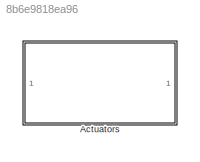
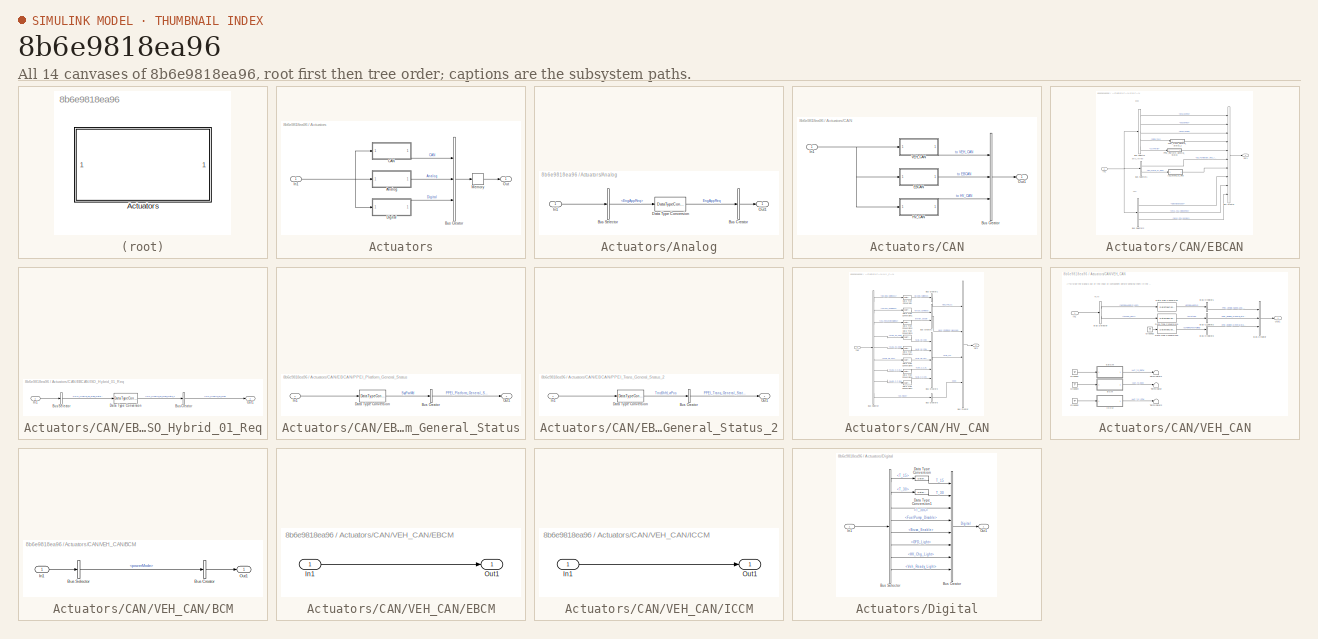
[diagram: thumbnail index - all 14 canvases of the model, root first then tree order]
MODEL slx_8b6e9818ea96
KIND library
CONFIG AbsTol = auto
CONFIG EnableMultiTasking = off
CONFIG FixedStep = auto
CONFIG MaxStep = auto
CONFIG MinStep = auto
CONFIG RelTol = 1e-3
CONFIG SampleTimeConstraint = Unconstrained
CONFIG Solver = VariableStepAuto
CONFIG SolverName = VariableStepAuto
CONFIG StartTime = 0.0
CONFIG StopTime = 10.0
BLOCK [SubSystem] Actuators
  Ports = [1, 1]
  RequestExecContextInheritance = off
  Variant = off
BLOCK [SubSystem] Actuators/Analog
  Ports = [1, 1]
  RequestExecContextInheritance = off
  Variant = off
BLOCK [BusCreator] Actuators/Analog/Bus Creator
  DisplayOption = bar
  InheritFromInputs = on
  Inputs = 1
  Ports = [1, 1]
BLOCK [BusSelector] Actuators/Analog/Bus Selector
  OutputAsBus = off
  OutputSignals = Controls.EngAppReq
  Ports = [1, 1]
BLOCK [DataTypeConversion] Actuators/Analog/Data Type Conversion
  RndMeth = Floor
  SaturateOnIntegerOverflow = off
BLOCK [Inport] Actuators/Analog/In1
  IconDisplay = Port number
BLOCK [Outport] Actuators/Analog/Out1
  IconDisplay = Port number
BLOCK [BusCreator] Actuators/Bus Creator
  DisplayOption = bar
  InheritFromInputs = on
  Inputs = 3
  Ports = [3, 1]
BLOCK [SubSystem] Actuators/CAN
  Ports = [1, 1]
  RequestExecContextInheritance = off
  Variant = off
BLOCK [BusCreator] Actuators/CAN/Bus Creator
  DisplayOption = bar
  InheritFromInputs = on
  Inputs = 3
  Ports = [3, 1]
BLOCK [SubSystem] Actuators/CAN/EBCAN
  Ports = [1, 1]
  RequestExecContextInheritance = off
  Variant = off
BLOCK [BusCreator] Actuators/CAN/EBCAN/Bus Creator
  DisplayOption = bar
  InheritFromInputs = on
  Inputs = 10
  Ports = [10, 1]
BLOCK [BusSelector] Actuators/CAN/EBCAN/Bus Selector
  OutputAsBus = off
  OutputSignals = Controls.EngAppReq,Controls.EngOnReq,Controls.EngTrqCmd,Controls.ShftLvrPos,Controls.SysPwrMd
  Ports = [1, 5]
BLOCK [BusSelector] Actuators/CAN/EBCAN/Bus Selector1
  OutputAsBus = off
  OutputSignals = BMS_CAN.ISO_Funktionaler_Req_All,BMS_CAN.ISO_Hybrid_01_Req
  Ports = [1, 2]
BLOCK [BusSelector] Actuators/CAN/EBCAN/Bus Selector2
  OutputAsBus = off
  OutputSignals = Controls.ClutchDisEngage,CCU_CAN.MY15_CCU_stModeReq,CCU_CAN.MY15_CCU_posDes
  Ports = [1, 3]
BLOCK [SubSystem] Actuators/CAN/EBCAN/ISO_Hybrid_01_Req
  Ports = [1, 1]
  RequestExecContextInheritance = off
  Variant = off
BLOCK [BusCreator] Actuators/CAN/EBCAN/ISO_Hybrid_01_Req/Bus Creator
  DisplayOption = bar
  InheritFromInputs = on
  Inputs = 1
  Ports = [1, 1]
BLOCK [BusSelector] Actuators/CAN/EBCAN/ISO_Hybrid_01_Req/Bus Selector
  OutputAsBus = off
  OutputSignals = ISO_Hybrid_01_Req_Data_byte_3
  Ports = [1, 1]
BLOCK [DataTypeConversion] Actuators/CAN/EBCAN/ISO_Hybrid_01_Req/Data Type Conversion
  RndMeth = Floor
  SaturateOnIntegerOverflow = off
BLOCK [Inport] Actuators/CAN/EBCAN/ISO_Hybrid_01_Req/In1
  IconDisplay = Port number
BLOCK [Outport] Actuators/CAN/EBCAN/ISO_Hybrid_01_Req/Out1
  IconDisplay = Port number
BLOCK [Inport] Actuators/CAN/EBCAN/In1
  IconDisplay = Port number
BLOCK [Outport] Actuators/CAN/EBCAN/Out1
  IconDisplay = Port number
BLOCK [SubSystem] Actuators/CAN/EBCAN/PPEI_Platform_General_Status
  Ports = [1, 1]
  RequestExecContextInheritance = off
  Variant = off
BLOCK [BusCreator] Actuators/CAN/EBCAN/PPEI_Platform_General_Status/Bus Creator
  DisplayOption = bar
  InheritFromInputs = on
  Inputs = 1
  Ports = [1, 1]
BLOCK [DataTypeConversion] Actuators/CAN/EBCAN/PPEI_Platform_General_Status/Data Type Conversion
  RndMeth = Floor
  SaturateOnIntegerOverflow = off
BLOCK [Inport] Actuators/CAN/EBCAN/PPEI_Platform_General_Status/In1
  IconDisplay = Port number
BLOCK [Outport] Actuators/CAN/EBCAN/PPEI_Platform_General_Status/Out1
  IconDisplay = Port number
BLOCK [SubSystem] Actuators/CAN/EBCAN/PPEI_Trans_General_Status_2
  Ports = [1, 1]
  RequestExecContextInheritance = off
  Variant = off
BLOCK [BusCreator] Actuators/CAN/EBCAN/PPEI_Trans_General_Status_2/Bus Creator
  DisplayOption = bar
  InheritFromInputs = on
  Inputs = 1
  Ports = [1, 1]
BLOCK [DataTypeConversion] Actuators/CAN/EBCAN/PPEI_Trans_General_Status_2/Data Type Conversion
  RndMeth = Floor
  SaturateOnIntegerOverflow = off
BLOCK [Inport] Actuators/CAN/EBCAN/PPEI_Trans_General_Status_2/In1
  IconDisplay = Port number
BLOCK [Outport] Actuators/CAN/EBCAN/PPEI_Trans_General_Status_2/Out1
  IconDisplay = Port number
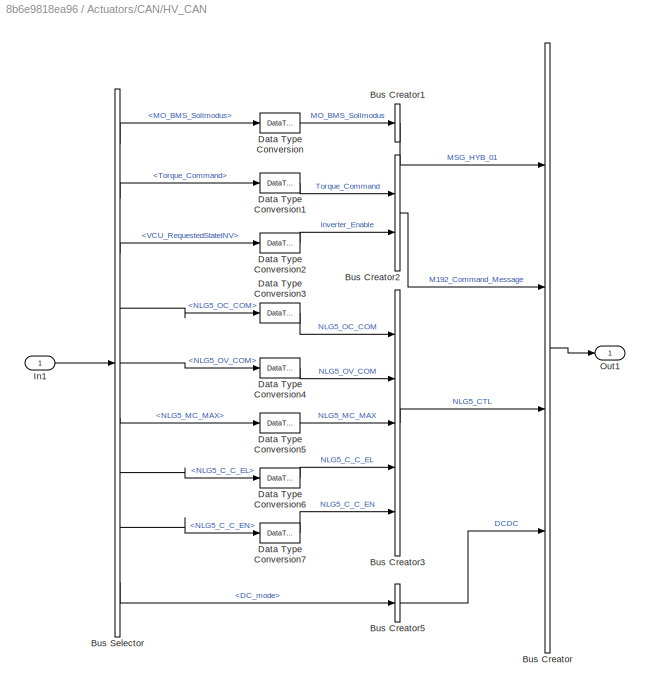
BLOCK [SubSystem] Actuators/CAN/HV_CAN
  Ports = [1, 1]
  RequestExecContextInheritance = off
  Variant = off
BLOCK [BusCreator] Actuators/CAN/HV_CAN/Bus Creator
  DisplayOption = bar
  InheritFromInputs = on
  Inputs = 4
  Ports = [4, 1]
BLOCK [BusCreator] Actuators/CAN/HV_CAN/Bus Creator1
  DisplayOption = bar
  InheritFromInputs = on
  Inputs = 1
  Ports = [1, 1]
BLOCK [BusCreator] Actuators/CAN/HV_CAN/Bus Creator2
  DisplayOption = bar
  InheritFromInputs = on
  Inputs = 2
  Ports = [2, 1]
BLOCK [BusCreator] Actuators/CAN/HV_CAN/Bus Creator3
  DisplayOption = bar
  InheritFromInputs = on
  Inputs = 5
  Ports = [5, 1]
BLOCK [BusCreator] Actuators/CAN/HV_CAN/Bus Creator5
  DisplayOption = bar
  InheritFromInputs = on
  Inputs = 1
  Ports = [1, 1]
BLOCK [BusSelector] Actuators/CAN/HV_CAN/Bus Selector
  OutputAsBus = off
  OutputSignals = BMS_CAN.MSG_HYB_01.MO_BMS_Sollmodus,Controls.Torque_Command,MCU_CAN.MCU_CAN.VCU_RequestedStateINV,OBC_CAN.NLG5_OC_COM,OBC_CAN.NLG5_OV_COM,OBC_CAN.NLG5_MC_MAX,OBC_CAN.NLG5_C_C_EL,OBC_CAN.NLG5_C_C_EN,MCU_CAN.DCDC_Out.DC_mode
  Ports = [1, 9]
BLOCK [DataTypeConversion] Actuators/CAN/HV_CAN/Data Type Conversion
  RndMeth = Floor
  SaturateOnIntegerOverflow = off
BLOCK [DataTypeConversion] Actuators/CAN/HV_CAN/Data Type Conversion1
  RndMeth = Floor
  SaturateOnIntegerOverflow = off
BLOCK [DataTypeConversion] Actuators/CAN/HV_CAN/Data Type Conversion2
  RndMeth = Floor
  SaturateOnIntegerOverflow = off
BLOCK [DataTypeConversion] Actuators/CAN/HV_CAN/Data Type Conversion3
  RndMeth = Floor
  SaturateOnIntegerOverflow = off
BLOCK [DataTypeConversion] Actuators/CAN/HV_CAN/Data Type Conversion4
  RndMeth = Floor
  SaturateOnIntegerOverflow = off
BLOCK [DataTypeConversion] Actuators/CAN/HV_CAN/Data Type Conversion5
  RndMeth = Floor
  SaturateOnIntegerOverflow = off
BLOCK [DataTypeConversion] Actuators/CAN/HV_CAN/Data Type Conversion6
  RndMeth = Floor
  SaturateOnIntegerOverflow = off
BLOCK [DataTypeConversion] Actuators/CAN/HV_CAN/Data Type Conversion7
  RndMeth = Floor
  SaturateOnIntegerOverflow = off
BLOCK [Inport] Actuators/CAN/HV_CAN/In1
  IconDisplay = Port number
BLOCK [Outport] Actuators/CAN/HV_CAN/Out1
  IconDisplay = Port number
BLOCK [Inport] Actuators/CAN/In1
  IconDisplay = Port number
BLOCK [Outport] Actuators/CAN/Out1
  IconDisplay = Port number
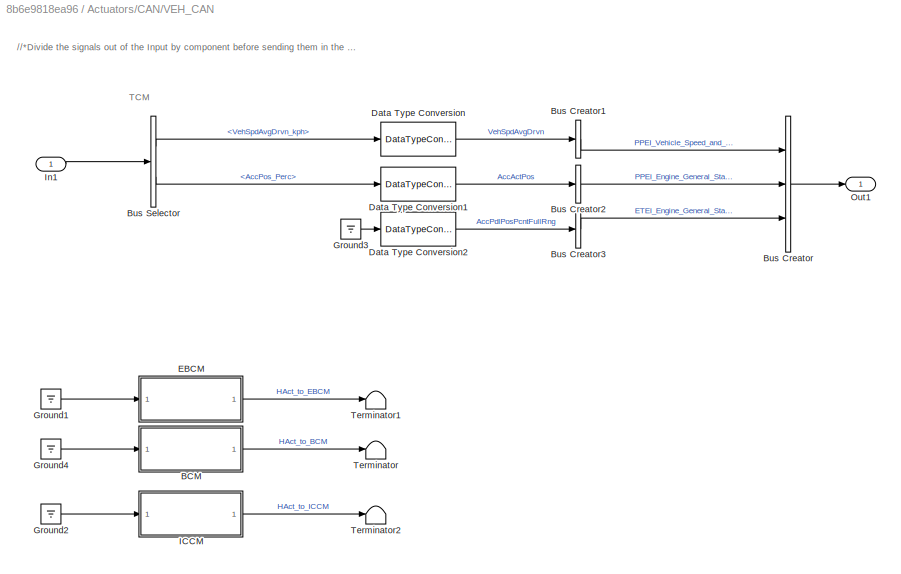
BLOCK [SubSystem] Actuators/CAN/VEH_CAN
  Ports = [1, 1]
  RequestExecContextInheritance = off
  Variant = off
BLOCK [SubSystem] Actuators/CAN/VEH_CAN/BCM
  Commented = on
  Ports = [1, 1]
  RequestExecContextInheritance = off
  Variant = off
BLOCK [BusCreator] Actuators/CAN/VEH_CAN/BCM/Bus Creator
  DisplayOption = bar
  InheritFromInputs = on
  Inputs = 1
  Ports = [1, 1]
BLOCK [BusSelector] Actuators/CAN/VEH_CAN/BCM/Bus Selector
  OutputAsBus = off
  OutputSignals = Controls.powerMode
  Ports = [1, 1]
BLOCK [Inport] Actuators/CAN/VEH_CAN/BCM/In1
  IconDisplay = Port number
BLOCK [Outport] Actuators/CAN/VEH_CAN/BCM/Out1
  IconDisplay = Port number
BLOCK [BusCreator] Actuators/CAN/VEH_CAN/Bus Creator
  DisplayOption = bar
  InheritFromInputs = on
  Inputs = 3
  Ports = [3, 1]
BLOCK [BusCreator] Actuators/CAN/VEH_CAN/Bus Creator1
  DisplayOption = bar
  InheritFromInputs = on
  Inputs = 1
  Ports = [1, 1]
BLOCK [BusCreator] Actuators/CAN/VEH_CAN/Bus Creator2
  DisplayOption = bar
  InheritFromInputs = on
  Inputs = 1
  Ports = [1, 1]
BLOCK [BusCreator] Actuators/CAN/VEH_CAN/Bus Creator3
  DisplayOption = bar
  InheritFromInputs = on
  Inputs = 1
  Ports = [1, 1]
BLOCK [BusSelector] Actuators/CAN/VEH_CAN/Bus Selector
  OutputAsBus = off
  OutputSignals = Controls.VehSpdAvgDrvn_kph,Controls.AccPos_Perc
  Ports = [1, 2]
BLOCK [DataTypeConversion] Actuators/CAN/VEH_CAN/Data Type Conversion
  RndMeth = Floor
  SaturateOnIntegerOverflow = off
BLOCK [DataTypeConversion] Actuators/CAN/VEH_CAN/Data Type Conversion1
  RndMeth = Floor
  SaturateOnIntegerOverflow = off
BLOCK [DataTypeConversion] Actuators/CAN/VEH_CAN/Data Type Conversion2
  RndMeth = Floor
  SaturateOnIntegerOverflow = off
BLOCK [SubSystem] Actuators/CAN/VEH_CAN/EBCM
  Commented = on
  Ports = [1, 1]
  RequestExecContextInheritance = off
  Variant = off
BLOCK [Inport] Actuators/CAN/VEH_CAN/EBCM/In1
  IconDisplay = Port number
BLOCK [Outport] Actuators/CAN/VEH_CAN/EBCM/Out1
  IconDisplay = Port number
BLOCK [Ground] Actuators/CAN/VEH_CAN/Ground1
  Commented = on
BLOCK [Ground] Actuators/CAN/VEH_CAN/Ground2
  Commented = on
BLOCK [Ground] Actuators/CAN/VEH_CAN/Ground3
BLOCK [Ground] Actuators/CAN/VEH_CAN/Ground4
  Commented = on
BLOCK [SubSystem] Actuators/CAN/VEH_CAN/ICCM
  Commented = on
  Ports = [1, 1]
  RequestExecContextInheritance = off
  Variant = off
BLOCK [Inport] Actuators/CAN/VEH_CAN/ICCM/In1
  IconDisplay = Port number
BLOCK [Outport] Actuators/CAN/VEH_CAN/ICCM/Out1
  IconDisplay = Port number
BLOCK [Inport] Actuators/CAN/VEH_CAN/In1
  IconDisplay = Port number
BLOCK [Outport] Actuators/CAN/VEH_CAN/Out1
  IconDisplay = Port number
BLOCK [Terminator] Actuators/CAN/VEH_CAN/Terminator
  Commented = on
BLOCK [Terminator] Actuators/CAN/VEH_CAN/Terminator1
  Commented = on
BLOCK [Terminator] Actuators/CAN/VEH_CAN/Terminator2
  Commented = on
BLOCK [SubSystem] Actuators/Digital
  Ports = [1, 1]
  RequestExecContextInheritance = off
  Variant = off
BLOCK [BusCreator] Actuators/Digital/Bus Creator
  DisplayOption = bar
  InheritFromInputs = on
  Inputs = 8
  Ports = [8, 1]
BLOCK [BusSelector] Actuators/Digital/Bus Selector
  OutputAsBus = off
  OutputSignals = BMS_Digital.T_15,BMS_Digital.T_30,BMS_Digital.T_30C,Fuel_Pump_Control.Pump_Commands.FuelPump_Disable,OBC_Digital.Brusa_Enable,Axiomatic_CAN.GFD_Light,Axiomatic_CAN.HV_Chg_Light,Axiomatic_CAN.Veh_Ready_Light
  Ports = [1, 8]
BLOCK [DataTypeConversion] Actuators/Digital/Data Type Conversion
  RndMeth = Floor
  SaturateOnIntegerOverflow = off
BLOCK [DataTypeConversion] Actuators/Digital/Data Type Conversion1
  RndMeth = Floor
  SaturateOnIntegerOverflow = off
BLOCK [Inport] Actuators/Digital/In1
  IconDisplay = Port number
BLOCK [Outport] Actuators/Digital/Out1
  IconDisplay = Port number
BLOCK [Inport] Actuators/In1
  IconDisplay = Port number
BLOCK [Memory] Actuators/Memory
  InheritSampleTime = on
BLOCK [Outport] Actuators/Out
  IconDisplay = Port number
ANNOTATION Actuators/CAN/EBCAN: BMS_Antrieb
ANNOTATION Actuators/CAN/EBCAN: CCU
ANNOTATION Actuators/CAN/EBCAN: ECM
ANNOTATION Actuators/CAN/VEH_CAN: //*Divide the signals out of the Input by component before sending them in the TCM, EBCM etc blocks*//
ANNOTATION Actuators/CAN/VEH_CAN: TCM
LINE Actuators/Analog/Bus Creator:1 -> Actuators/Analog/Out1:1
LINE Actuators/Analog/Bus Selector:1 -> Actuators/Analog/Data Type Conversion:1
LINE Actuators/Analog/Data Type Conversion:1 -> Actuators/Analog/Bus Creator:1
LINE Actuators/Analog/In1:1 -> Actuators/Analog/Bus Selector:1
LINE Actuators/Analog:1 -> Actuators/Bus Creator:2
LINE Actuators/Bus Creator:1 -> Actuators/Memory:1
LINE Actuators/CAN/Bus Creator:1 -> Actuators/CAN/Out1:1
LINE Actuators/CAN/EBCAN/Bus Creator:1 -> Actuators/CAN/EBCAN/Out1:1
LINE Actuators/CAN/EBCAN/Bus Selector1:1 -> Actuators/CAN/EBCAN/Bus Creator:6
LINE Actuators/CAN/EBCAN/Bus Selector1:2 -> Actuators/CAN/EBCAN/ISO_Hybrid_01_Req:1
LINE Actuators/CAN/EBCAN/Bus Selector2:1 -> Actuators/CAN/EBCAN/Bus Creator:8
LINE Actuators/CAN/EBCAN/Bus Selector2:2 -> Actuators/CAN/EBCAN/Bus Creator:9
LINE Actuators/CAN/EBCAN/Bus Selector2:3 -> Actuators/CAN/EBCAN/Bus Creator:10
LINE Actuators/CAN/EBCAN/Bus Selector:1 -> Actuators/CAN/EBCAN/Bus Creator:1
LINE Actuators/CAN/EBCAN/Bus Selector:2 -> Actuators/CAN/EBCAN/Bus Creator:2
LINE Actuators/CAN/EBCAN/Bus Selector:3 -> Actuators/CAN/EBCAN/Bus Creator:3
LINE Actuators/CAN/EBCAN/Bus Selector:4 -> Actuators/CAN/EBCAN/PPEI_Trans_General_Status_2:1
LINE Actuators/CAN/EBCAN/Bus Selector:5 -> Actuators/CAN/EBCAN/PPEI_Platform_General_Status:1
LINE Actuators/CAN/EBCAN/ISO_Hybrid_01_Req/Bus Creator:1 -> Actuators/CAN/EBCAN/ISO_Hybrid_01_Req/Out1:1
LINE Actuators/CAN/EBCAN/ISO_Hybrid_01_Req/Bus Selector:1 -> Actuators/CAN/EBCAN/ISO_Hybrid_01_Req/Data Type Conversion:1
LINE Actuators/CAN/EBCAN/ISO_Hybrid_01_Req/Data Type Conversion:1 -> Actuators/CAN/EBCAN/ISO_Hybrid_01_Req/Bus Creator:1
LINE Actuators/CAN/EBCAN/ISO_Hybrid_01_Req/In1:1 -> Actuators/CAN/EBCAN/ISO_Hybrid_01_Req/Bus Selector:1
LINE Actuators/CAN/EBCAN/ISO_Hybrid_01_Req:1 -> Actuators/CAN/EBCAN/Bus Creator:7
NET Actuators/CAN/EBCAN/In1:1 -> Actuators/CAN/EBCAN/Bus Selector1:1, Actuators/CAN/EBCAN/Bus Selector2:1, Actuators/CAN/EBCAN/Bus Selector:1
LINE Actuators/CAN/EBCAN/PPEI_Platform_General_Status/Bus Creator:1 -> Actuators/CAN/EBCAN/PPEI_Platform_General_Status/Out1:1
LINE Actuators/CAN/EBCAN/PPEI_Platform_General_Status/Data Type Conversion:1 -> Actuators/CAN/EBCAN/PPEI_Platform_General_Status/Bus Creator:1
LINE Actuators/CAN/EBCAN/PPEI_Platform_General_Status/In1:1 -> Actuators/CAN/EBCAN/PPEI_Platform_General_Status/Data Type Conversion:1
LINE Actuators/CAN/EBCAN/PPEI_Platform_General_Status:1 -> Actuators/CAN/EBCAN/Bus Creator:5
LINE Actuators/CAN/EBCAN/PPEI_Trans_General_Status_2/Bus Creator:1 -> Actuators/CAN/EBCAN/PPEI_Trans_General_Status_2/Out1:1
LINE Actuators/CAN/EBCAN/PPEI_Trans_General_Status_2/Data Type Conversion:1 -> Actuators/CAN/EBCAN/PPEI_Trans_General_Status_2/Bus Creator:1
LINE Actuators/CAN/EBCAN/PPEI_Trans_General_Status_2/In1:1 -> Actuators/CAN/EBCAN/PPEI_Trans_General_Status_2/Data Type Conversion:1
LINE Actuators/CAN/EBCAN/PPEI_Trans_General_Status_2:1 -> Actuators/CAN/EBCAN/Bus Creator:4
LINE Actuators/CAN/EBCAN:1 -> Actuators/CAN/Bus Creator:2
LINE Actuators/CAN/HV_CAN/Bus Creator1:1 -> Actuators/CAN/HV_CAN/Bus Creator:1
LINE Actuators/CAN/HV_CAN/Bus Creator2:1 -> Actuators/CAN/HV_CAN/Bus Creator:2
LINE Actuators/CAN/HV_CAN/Bus Creator3:1 -> Actuators/CAN/HV_CAN/Bus Creator:3
LINE Actuators/CAN/HV_CAN/Bus Creator5:1 -> Actuators/CAN/HV_CAN/Bus Creator:4
LINE Actuators/CAN/HV_CAN/Bus Creator:1 -> Actuators/CAN/HV_CAN/Out1:1
LINE Actuators/CAN/HV_CAN/Bus Selector:1 -> Actuators/CAN/HV_CAN/Data Type Conversion:1
LINE Actuators/CAN/HV_CAN/Bus Selector:2 -> Actuators/CAN/HV_CAN/Data Type Conversion1:1
LINE Actuators/CAN/HV_CAN/Bus Selector:3 -> Actuators/CAN/HV_CAN/Data Type Conversion2:1
LINE Actuators/CAN/HV_CAN/Bus Selector:4 -> Actuators/CAN/HV_CAN/Data Type Conversion3:1
LINE Actuators/CAN/HV_CAN/Bus Selector:5 -> Actuators/CAN/HV_CAN/Data Type Conversion4:1
LINE Actuators/CAN/HV_CAN/Bus Selector:6 -> Actuators/CAN/HV_CAN/Data Type Conversion5:1
LINE Actuators/CAN/HV_CAN/Bus Selector:7 -> Actuators/CAN/HV_CAN/Data Type Conversion6:1
LINE Actuators/CAN/HV_CAN/Bus Selector:8 -> Actuators/CAN/HV_CAN/Data Type Conversion7:1
LINE Actuators/CAN/HV_CAN/Bus Selector:9 -> Actuators/CAN/HV_CAN/Bus Creator5:1
LINE Actuators/CAN/HV_CAN/Data Type Conversion1:1 -> Actuators/CAN/HV_CAN/Bus Creator2:1
LINE Actuators/CAN/HV_CAN/Data Type Conversion2:1 -> Actuators/CAN/HV_CAN/Bus Creator2:2
LINE Actuators/CAN/HV_CAN/Data Type Conversion3:1 -> Actuators/CAN/HV_CAN/Bus Creator3:1
LINE Actuators/CAN/HV_CAN/Data Type Conversion4:1 -> Actuators/CAN/HV_CAN/Bus Creator3:2
LINE Actuators/CAN/HV_CAN/Data Type Conversion5:1 -> Actuators/CAN/HV_CAN/Bus Creator3:3
LINE Actuators/CAN/HV_CAN/Data Type Conversion6:1 -> Actuators/CAN/HV_CAN/Bus Creator3:4
LINE Actuators/CAN/HV_CAN/Data Type Conversion7:1 -> Actuators/CAN/HV_CAN/Bus Creator3:5
LINE Actuators/CAN/HV_CAN/Data Type Conversion:1 -> Actuators/CAN/HV_CAN/Bus Creator1:1
LINE Actuators/CAN/HV_CAN/In1:1 -> Actuators/CAN/HV_CAN/Bus Selector:1
LINE Actuators/CAN/HV_CAN:1 -> Actuators/CAN/Bus Creator:3
NET Actuators/CAN/In1:1 -> Actuators/CAN/EBCAN:1, Actuators/CAN/HV_CAN:1, Actuators/CAN/VEH_CAN:1
LINE Actuators/CAN/VEH_CAN/BCM/Bus Creator:1 -> Actuators/CAN/VEH_CAN/BCM/Out1:1
LINE Actuators/CAN/VEH_CAN/BCM/Bus Selector:1 -> Actuators/CAN/VEH_CAN/BCM/Bus Creator:1
LINE Actuators/CAN/VEH_CAN/BCM/In1:1 -> Actuators/CAN/VEH_CAN/BCM/Bus Selector:1
LINE Actuators/CAN/VEH_CAN/BCM:1 -> Actuators/CAN/VEH_CAN/Terminator:1
LINE Actuators/CAN/VEH_CAN/Bus Creator1:1 -> Actuators/CAN/VEH_CAN/Bus Creator:1
LINE Actuators/CAN/VEH_CAN/Bus Creator2:1 -> Actuators/CAN/VEH_CAN/Bus Creator:2
LINE Actuators/CAN/VEH_CAN/Bus Creator3:1 -> Actuators/CAN/VEH_CAN/Bus Creator:3
LINE Actuators/CAN/VEH_CAN/Bus Creator:1 -> Actuators/CAN/VEH_CAN/Out1:1
LINE Actuators/CAN/VEH_CAN/Bus Selector:1 -> Actuators/CAN/VEH_CAN/Data Type Conversion:1
LINE Actuators/CAN/VEH_CAN/Bus Selector:2 -> Actuators/CAN/VEH_CAN/Data Type Conversion1:1
LINE Actuators/CAN/VEH_CAN/Data Type Conversion1:1 -> Actuators/CAN/VEH_CAN/Bus Creator2:1
LINE Actuators/CAN/VEH_CAN/Data Type Conversion2:1 -> Actuators/CAN/VEH_CAN/Bus Creator3:1
LINE Actuators/CAN/VEH_CAN/Data Type Conversion:1 -> Actuators/CAN/VEH_CAN/Bus Creator1:1
LINE Actuators/CAN/VEH_CAN/EBCM/In1:1 -> Actuators/CAN/VEH_CAN/EBCM/Out1:1
LINE Actuators/CAN/VEH_CAN/EBCM:1 -> Actuators/CAN/VEH_CAN/Terminator1:1
LINE Actuators/CAN/VEH_CAN/Ground1:1 -> Actuators/CAN/VEH_CAN/EBCM:1
LINE Actuators/CAN/VEH_CAN/Ground2:1 -> Actuators/CAN/VEH_CAN/ICCM:1
LINE Actuators/CAN/VEH_CAN/Ground3:1 -> Actuators/CAN/VEH_CAN/Data Type Conversion2:1
LINE Actuators/CAN/VEH_CAN/Ground4:1 -> Actuators/CAN/VEH_CAN/BCM:1
LINE Actuators/CAN/VEH_CAN/ICCM/In1:1 -> Actuators/CAN/VEH_CAN/ICCM/Out1:1
LINE Actuators/CAN/VEH_CAN/ICCM:1 -> Actuators/CAN/VEH_CAN/Terminator2:1
LINE Actuators/CAN/VEH_CAN/In1:1 -> Actuators/CAN/VEH_CAN/Bus Selector:1
LINE Actuators/CAN/VEH_CAN:1 -> Actuators/CAN/Bus Creator:1
LINE Actuators/CAN:1 -> Actuators/Bus Creator:1
LINE Actuators/Digital/Bus Creator:1 -> Actuators/Digital/Out1:1
LINE Actuators/Digital/Bus Selector:1 -> Actuators/Digital/Data Type Conversion:1
LINE Actuators/Digital/Bus Selector:2 -> Actuators/Digital/Data Type Conversion1:1
LINE Actuators/Digital/Bus Selector:3 -> Actuators/Digital/Bus Creator:3
LINE Actuators/Digital/Bus Selector:4 -> Actuators/Digital/Bus Creator:4
LINE Actuators/Digital/Bus Selector:5 -> Actuators/Digital/Bus Creator:5
LINE Actuators/Digital/Bus Selector:6 -> Actuators/Digital/Bus Creator:6
LINE Actuators/Digital/Bus Selector:7 -> Actuators/Digital/Bus Creator:7
LINE Actuators/Digital/Bus Selector:8 -> Actuators/Digital/Bus Creator:8
LINE Actuators/Digital/Data Type Conversion1:1 -> Actuators/Digital/Bus Creator:2
LINE Actuators/Digital/Data Type Conversion:1 -> Actuators/Digital/Bus Creator:1
LINE Actuators/Digital/In1:1 -> Actuators/Digital/Bus Selector:1
LINE Actuators/Digital:1 -> Actuators/Bus Creator:3
NET Actuators/In1:1 -> Actuators/Analog:1, Actuators/CAN:1, Actuators/Digital:1
LINE Actuators/Memory:1 -> Actuators/Out:1
note: NET lines group one-source signal fan-out (src -> all destinations, sorted); 1:1 wires keep LINE
